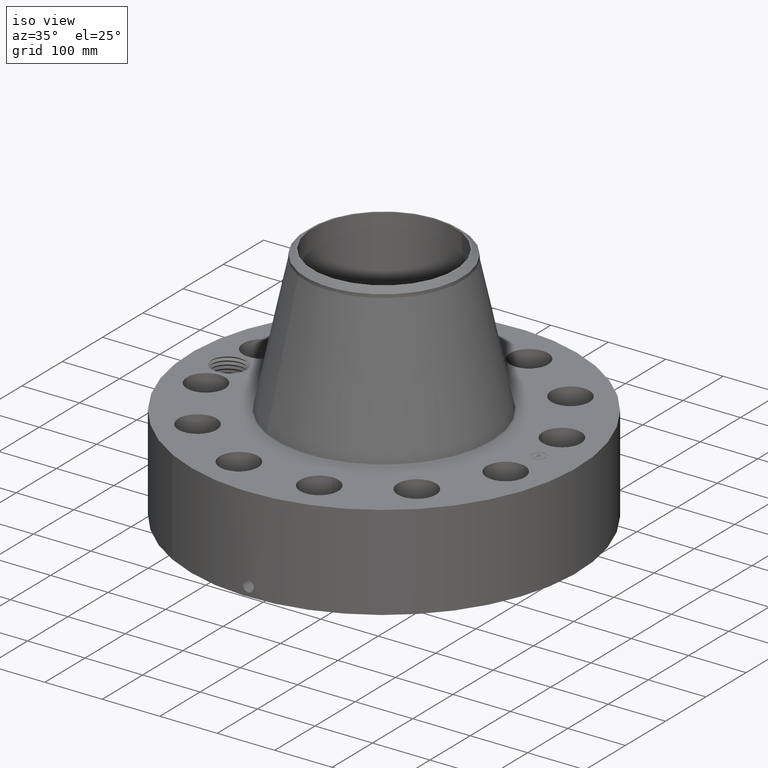
[diagram: clean part render]
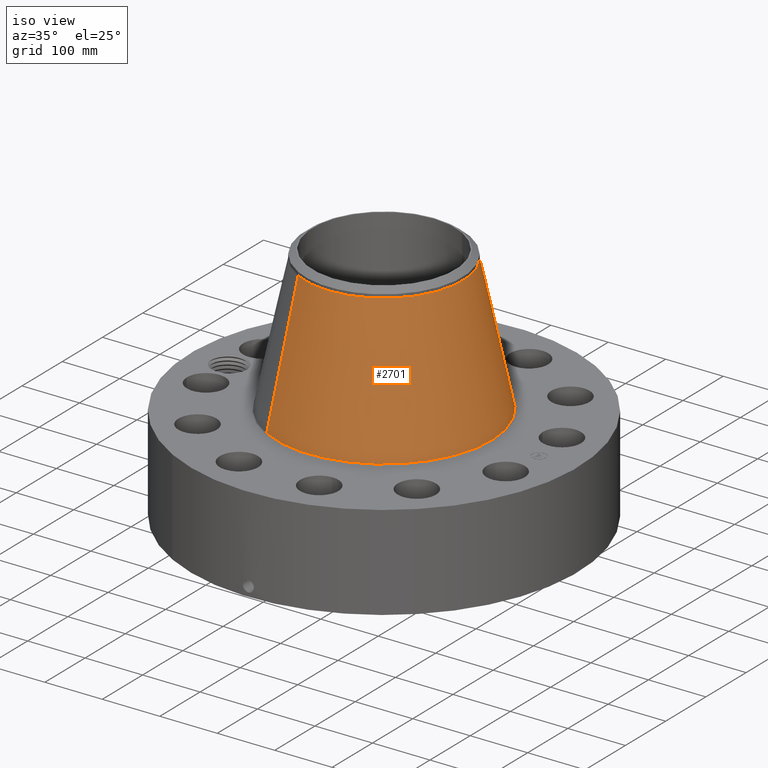
[diagram: same view with one face highlighted and labeled with its STEP entity id]
A machine part, iso view. The second image highlights one B-rep face of the part: STEP entity #2701.
In plain terms, the highlighted conical surface has half-angle 11.961 deg.
Its self-contained STEP definition (entity closure, byte-faithful):
#2004=AXIS2_PLACEMENT_3D('Circle Axis2P3D',#2002,#2003,$) ;
#2674=AXIS2_PLACEMENT_3D('Cone Axis2P3D',#2671,#2672,#2673) ;
#2685=AXIS2_PLACEMENT_3D('Circle Axis2P3D',#2683,#2684,$) ;
#1999=CARTESIAN_POINT('Vertex',(3.52610126704,6.45448507483,6.84512969531)) ;
#2002=CARTESIAN_POINT('Axis2P3D Location',(0.,0.,6.84512969531)) ;
#2006=CARTESIAN_POINT('Vertex',(-3.52610126704,-6.45448507483,6.84512969531)) ;
#2671=CARTESIAN_POINT('Axis2P3D Location',(0.,0.,16.1905354815)) ;
#2676=CARTESIAN_POINT('Line Origine',(3.05150676852,5.5857456725,11.5178325884)) ;
#2680=CARTESIAN_POINT('Vertex',(2.57691227001,4.71700627018,16.1905354815)) ;
#2683=CARTESIAN_POINT('Axis2P3D Location',(0.,0.,16.1905354815)) ;
#2687=CARTESIAN_POINT('Vertex',(-2.57691227001,-4.71700627018,16.1905354815)) ;
#2690=CARTESIAN_POINT('Line Origine',(-3.05150676852,-5.5857456725,11.5178325884)) ;
#2003=DIRECTION('Axis2P3D Direction',(0.,0.,-0.0393700787402)) ;
#2672=DIRECTION('Axis2P3D Direction',(0.,0.,-0.0393700787402)) ;
#2673=DIRECTION('Axis2P3D XDirection',(-0.0188750212049,-0.0345504945626,0.)) ;
#2677=DIRECTION('Vector Direction',(0.00391189607474,0.00716067773343,-0.0385152549453)) ;
#2684=DIRECTION('Axis2P3D Direction',(0.,0.,-0.0393700787402)) ;
#2691=DIRECTION('Vector Direction',(-0.00391189607474,-0.00716067773343,-0.0385152549453)) ;
#2678=VECTOR('Line Direction',#2677,0.0393700787402) ;
#2692=VECTOR('Line Direction',#2691,0.0393700787402) ;
#2696=ORIENTED_EDGE('',*,*,#2008,.F.) ;
#2697=ORIENTED_EDGE('',*,*,#2682,.T.) ;
#2698=ORIENTED_EDGE('',*,*,#2689,.T.) ;
#2699=ORIENTED_EDGE('',*,*,#2694,.F.) ;
#2701=ADVANCED_FACE('PartBody',(#2700),#2675,.T.) ;
#2005=CIRCLE('generated circle',#2004,7.35484654677) ;
#2686=CIRCLE('generated circle',#2685,5.37500000002) ;
#2675=CONICAL_SURFACE('Cone',#2674,5.37500000002,0.208765681126) ;
#2008=EDGE_CURVE('',#2000,#2007,#2005,.T.) ;
#2682=EDGE_CURVE('',#2000,#2681,#2679,.F.) ;
#2689=EDGE_CURVE('',#2681,#2688,#2686,.T.) ;
#2694=EDGE_CURVE('',#2007,#2688,#2693,.F.) ;
#2695=EDGE_LOOP('',(#2696,#2697,#2698,#2699)) ;
#2700=FACE_OUTER_BOUND('',#2695,.T.) ;
#2679=LINE('Line',#2676,#2678) ;
#2693=LINE('Line',#2690,#2692) ;
#2000=VERTEX_POINT('',#1999) ;
#2007=VERTEX_POINT('',#2006) ;
#2681=VERTEX_POINT('',#2680) ;
#2688=VERTEX_POINT('',#2687) ;